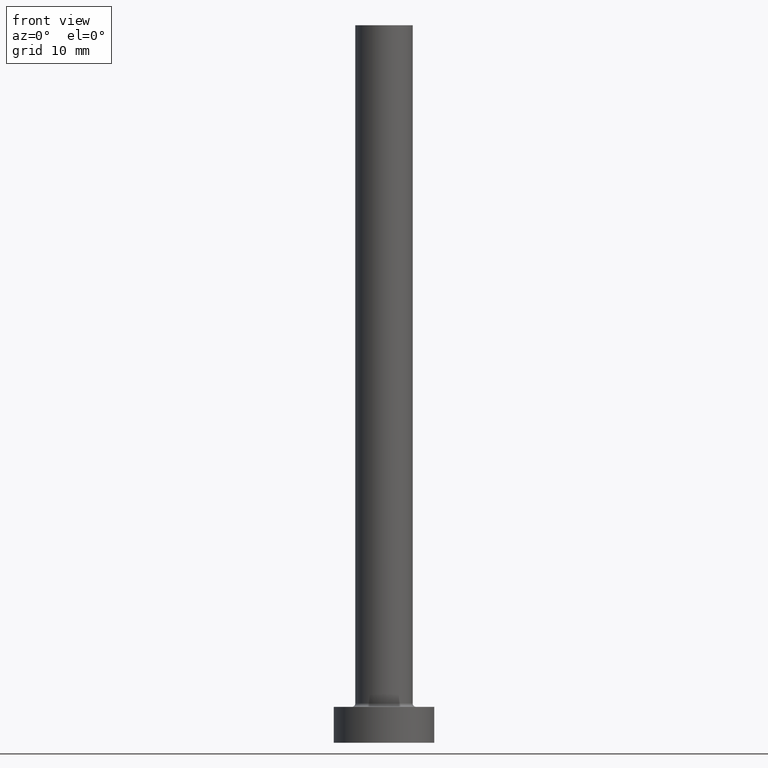
[diagram: clean part render]
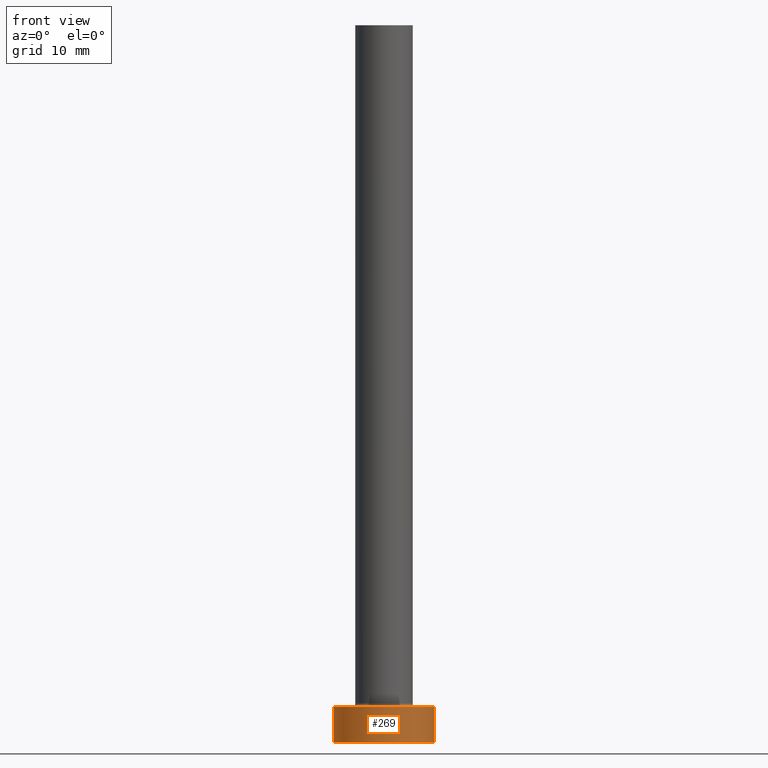
[diagram: same view with one face highlighted and labeled with its STEP entity id]
A machine part, front view. The second image highlights one B-rep face of the part: STEP entity #269.
In plain terms, the highlighted cylindrical surface (partial cylindrical patch) has radius 7 mm, axis along (-0, -0, -1).
Its self-contained STEP definition (entity closure, byte-faithful):
#4 = DIRECTION ( 'NONE',  ( -1.000000000000000000, 0.000000000000000000, 0.000000000000000000 ) ) ;
#8 = ORIENTED_EDGE ( 'NONE', *, *, #27, .T. ) ;
#27 = EDGE_CURVE ( 'NONE', #387, #179, #53, .T. ) ;
#39 = DIRECTION ( 'NONE',  ( 0.000000000000000000, 0.000000000000000000, 1.000000000000000000 ) ) ;
#41 = LINE ( 'NONE', #155, #81 ) ;
#53 = CIRCLE ( 'NONE', #321, 7.000000000000000000 ) ;
#76 = CARTESIAN_POINT ( 'NONE',  ( 7.000000000000000000, 8.572527594031473190E-16, 5.000000000000000000 ) ) ;
#77 = EDGE_CURVE ( 'NONE', #135, #160, #171, .T. ) ;
#81 = VECTOR ( 'NONE', #120, 1000.000000000000000 ) ;
#120 = DIRECTION ( 'NONE',  ( -0.000000000000000000, -0.000000000000000000, -1.000000000000000000 ) ) ;
#135 = VERTEX_POINT ( 'NONE', #246 ) ;
#138 = DIRECTION ( 'NONE',  ( 1.000000000000000000, 0.000000000000000000, 0.000000000000000000 ) ) ;
#152 = EDGE_CURVE ( 'NONE', #135, #387, #41, .T. ) ;
#155 = CARTESIAN_POINT ( 'NONE',  ( -7.000000000000000000, 0.000000000000000000, 5.000000000000000000 ) ) ;
#157 = AXIS2_PLACEMENT_3D ( 'NONE', #396, #322, #4 ) ;
#160 = VERTEX_POINT ( 'NONE', #76 ) ;
#171 = CIRCLE ( 'NONE', #350, 7.000000000000000000 ) ;
#179 = VERTEX_POINT ( 'NONE', #331 ) ;
#187 = ORIENTED_EDGE ( 'NONE', *, *, #337, .F. ) ;
#190 = FACE_OUTER_BOUND ( 'NONE', #442, .T. ) ;
#193 = LINE ( 'NONE', #411, #405 ) ;
#219 = CYLINDRICAL_SURFACE ( 'NONE', #157, 7.000000000000000000 ) ;
#246 = CARTESIAN_POINT ( 'NONE',  ( -7.000000000000000000, 0.000000000000000000, 5.000000000000000000 ) ) ;
#247 = CARTESIAN_POINT ( 'NONE',  ( 0.000000000000000000, 0.000000000000000000, 5.000000000000000000 ) ) ;
#269 = ADVANCED_FACE ( 'NONE', ( #190 ), #219, .T. ) ;
#300 = DIRECTION ( 'NONE',  ( -0.000000000000000000, -0.000000000000000000, -1.000000000000000000 ) ) ;
#314 = ORIENTED_EDGE ( 'NONE', *, *, #77, .F. ) ;
#321 = AXIS2_PLACEMENT_3D ( 'NONE', #450, #39, #352 ) ;
#322 = DIRECTION ( 'NONE',  ( -0.000000000000000000, -0.000000000000000000, -1.000000000000000000 ) ) ;
#331 = CARTESIAN_POINT ( 'NONE',  ( 7.000000000000000000, 8.572527594031473190E-16, 0.000000000000000000 ) ) ;
#336 = CARTESIAN_POINT ( 'NONE',  ( -7.000000000000000000, 0.000000000000000000, 0.000000000000000000 ) ) ;
#337 = EDGE_CURVE ( 'NONE', #160, #179, #193, .T. ) ;
#346 = DIRECTION ( 'NONE',  ( 0.000000000000000000, 0.000000000000000000, 1.000000000000000000 ) ) ;
#350 = AXIS2_PLACEMENT_3D ( 'NONE', #247, #346, #138 ) ;
#352 = DIRECTION ( 'NONE',  ( 1.000000000000000000, 0.000000000000000000, 0.000000000000000000 ) ) ;
#387 = VERTEX_POINT ( 'NONE', #336 ) ;
#396 = CARTESIAN_POINT ( 'NONE',  ( 0.000000000000000000, 0.000000000000000000, 5.000000000000000000 ) ) ;
#405 = VECTOR ( 'NONE', #300, 1000.000000000000000 ) ;
#411 = CARTESIAN_POINT ( 'NONE',  ( 7.000000000000000000, 8.572527594031473190E-16, 5.000000000000000000 ) ) ;
#442 = EDGE_LOOP ( 'NONE', ( #187, #314, #445, #8 ) ) ;
#445 = ORIENTED_EDGE ( 'NONE', *, *, #152, .T. ) ;
#450 = CARTESIAN_POINT ( 'NONE',  ( 0.000000000000000000, 0.000000000000000000, 0.000000000000000000 ) ) ;